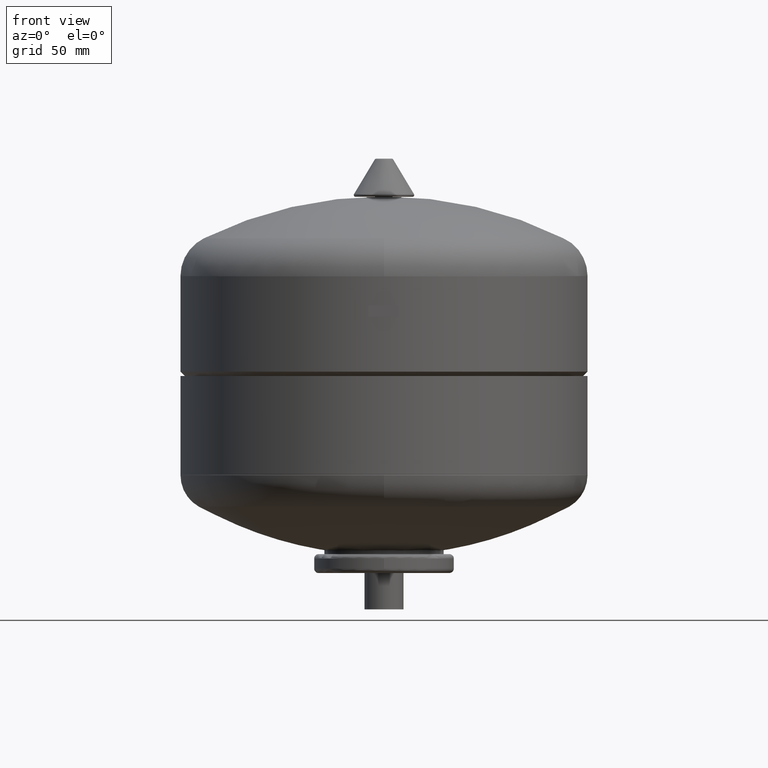
[diagram: clean part render]
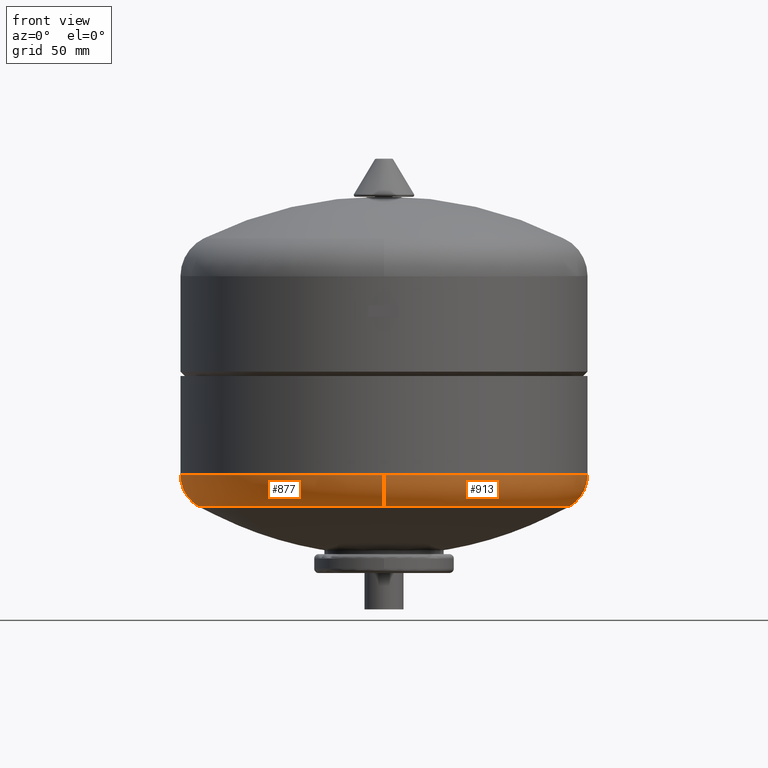
[diagram: same view with one multi-face feature highlighted, each face labeled with its STEP entity id]
A machine part, front view. The highlighted faces form ONE feature: a constant-radius fillet chain: 2 tangent blend faces with common blend radius 25 mm. The faces share edges in the B-rep.
Their STEP definitions:
[1] entity #877 (Torus):
#782=CARTESIAN_POINT('',(-139.999999999999970,1.180331E-016,92.357457576154616));
#783=VERTEX_POINT('',#782);
#807=CARTESIAN_POINT('',(-9.759320E-015,140.0,92.357457576154616));
#808=VERTEX_POINT('',#807);
#816=CARTESIAN_POINT('',(-1.190815E-016,1.180331E-016,92.357457576154587));
#817=DIRECTION('',(0.0,0.0,1.0));
#818=DIRECTION('',(-1.0,0.0,0.0));
#819=AXIS2_PLACEMENT_3D('',#816,#817,#818);
#820=CIRCLE('',#819,140.0);
#821=EDGE_CURVE('',#808,#783,#820,.T.);
#826=CARTESIAN_POINT('',(7.385169E-015,1.180331E-016,92.357457576154601));
#827=DIRECTION('',(1.853286E-016,-1.836970E-016,1.0));
#828=DIRECTION('',(0.0,-1.0,0.0));
#829=AXIS2_PLACEMENT_3D('',#826,#827,#828);
#830=TOROIDAL_SURFACE('',#829,115.000000000000010,25.0);
#831=CARTESIAN_POINT('',(7.385169E-015,-140.0,92.357457576154573));
#832=VERTEX_POINT('',#831);
#833=CARTESIAN_POINT('',(3.355614E-015,-127.339055793991430,70.614695513510171));
#834=VERTEX_POINT('',#833);
#835=CARTESIAN_POINT('',(7.385169E-015,-115.000000000000010,92.357457576154573));
#836=DIRECTION('',(1.0,0.0,0.0));
#837=DIRECTION('',(0.0,-1.0,0.0));
#838=AXIS2_PLACEMENT_3D('',#835,#836,#837);
#839=CIRCLE('',#838,25.0);
#840=EDGE_CURVE('',#832,#834,#839,.T.);
#841=ORIENTED_EDGE('',*,*,#840,.F.);
#842=CARTESIAN_POINT('',(-1.190815E-016,1.180331E-016,92.357457576154587));
#843=DIRECTION('',(0.0,0.0,1.0));
#844=DIRECTION('',(-1.0,0.0,0.0));
#845=AXIS2_PLACEMENT_3D('',#842,#843,#844);
#846=CIRCLE('',#845,140.0);
#847=EDGE_CURVE('',#783,#832,#846,.T.);
#848=ORIENTED_EDGE('',*,*,#847,.F.);
#849=ORIENTED_EDGE('',*,*,#821,.F.);
#850=CARTESIAN_POINT('',(-1.223841E-014,127.339055793991430,70.614695513510227));
#851=VERTEX_POINT('',#850);
#852=CARTESIAN_POINT('',(-6.697804E-015,115.000000000000010,92.357457576154630));
#853=DIRECTION('',(-1.0,0.0,0.0));
#854=DIRECTION('',(0.0,1.0,0.0));
#855=AXIS2_PLACEMENT_3D('',#852,#853,#854);
#856=CIRCLE('',#855,25.0);
#857=EDGE_CURVE('',#808,#851,#856,.T.);
#858=ORIENTED_EDGE('',*,*,#857,.T.);
#859=CARTESIAN_POINT('',(-127.339055793991450,4.112114E-015,70.614695513510213));
#860=VERTEX_POINT('',#859);
#861=CARTESIAN_POINT('',(-4.148636E-015,4.112114E-015,70.614695513510199));
#862=DIRECTION('',(0.0,0.0,1.0));
#863=DIRECTION('',(-1.0,0.0,0.0));
#864=AXIS2_PLACEMENT_3D('',#861,#862,#863);
#865=CIRCLE('',#864,127.339055793991430);
#866=EDGE_CURVE('',#851,#860,#865,.T.);
#867=ORIENTED_EDGE('',*,*,#866,.T.);
#868=CARTESIAN_POINT('',(-4.148636E-015,4.112114E-015,70.614695513510199));
#869=DIRECTION('',(0.0,0.0,1.0));
#870=DIRECTION('',(-1.0,0.0,0.0));
#871=AXIS2_PLACEMENT_3D('',#868,#869,#870);
#872=CIRCLE('',#871,127.339055793991430);
#873=EDGE_CURVE('',#860,#834,#872,.T.);
#874=ORIENTED_EDGE('',*,*,#873,.T.);
#875=EDGE_LOOP('',(#841,#848,#849,#858,#867,#874));
#876=FACE_OUTER_BOUND('',#875,.T.);
#877=ADVANCED_FACE('',(#876),#830,.T.);
[2] entity #913 (Torus):
#799=CARTESIAN_POINT('',(140.0,1.726252E-014,92.357457576154559));
#800=VERTEX_POINT('',#799);
#807=CARTESIAN_POINT('',(-9.759320E-015,140.0,92.357457576154616));
#808=VERTEX_POINT('',#807);
#809=CARTESIAN_POINT('',(-1.190815E-016,1.180331E-016,92.357457576154587));
#810=DIRECTION('',(0.0,0.0,1.0));
#811=DIRECTION('',(-1.0,0.0,0.0));
#812=AXIS2_PLACEMENT_3D('',#809,#810,#811);
#813=CIRCLE('',#812,140.0);
#814=EDGE_CURVE('',#800,#808,#813,.T.);
#831=CARTESIAN_POINT('',(7.385169E-015,-140.0,92.357457576154573));
#832=VERTEX_POINT('',#831);
#833=CARTESIAN_POINT('',(3.355614E-015,-127.339055793991430,70.614695513510171));
#834=VERTEX_POINT('',#833);
#835=CARTESIAN_POINT('',(7.385169E-015,-115.000000000000010,92.357457576154573));
#836=DIRECTION('',(1.0,0.0,0.0));
#837=DIRECTION('',(0.0,-1.0,0.0));
#838=AXIS2_PLACEMENT_3D('',#835,#836,#837);
#839=CIRCLE('',#838,25.0);
#840=EDGE_CURVE('',#832,#834,#839,.T.);
#850=CARTESIAN_POINT('',(-1.223841E-014,127.339055793991430,70.614695513510227));
#851=VERTEX_POINT('',#850);
#852=CARTESIAN_POINT('',(-6.697804E-015,115.000000000000010,92.357457576154630));
#853=DIRECTION('',(-1.0,0.0,0.0));
#854=DIRECTION('',(0.0,1.0,0.0));
#855=AXIS2_PLACEMENT_3D('',#852,#853,#854);
#856=CIRCLE('',#855,25.0);
#857=EDGE_CURVE('',#808,#851,#856,.T.);
#885=CARTESIAN_POINT('',(-4.148636E-015,4.112114E-015,70.614695513510199));
#886=DIRECTION('',(0.0,0.0,1.0));
#887=DIRECTION('',(-1.0,0.0,0.0));
#888=AXIS2_PLACEMENT_3D('',#885,#886,#887);
#889=CIRCLE('',#888,127.339055793991430);
#890=EDGE_CURVE('',#834,#851,#889,.T.);
#895=CARTESIAN_POINT('',(7.385169E-015,1.180331E-016,92.357457576154601));
#896=DIRECTION('',(1.853286E-016,-1.836970E-016,1.0));
#897=DIRECTION('',(0.0,-1.0,0.0));
#898=AXIS2_PLACEMENT_3D('',#895,#896,#897);
#899=TOROIDAL_SURFACE('',#898,115.000000000000010,25.0);
#900=ORIENTED_EDGE('',*,*,#840,.T.);
#901=ORIENTED_EDGE('',*,*,#890,.T.);
#902=ORIENTED_EDGE('',*,*,#857,.F.);
#903=ORIENTED_EDGE('',*,*,#814,.F.);
#904=CARTESIAN_POINT('',(-1.190815E-016,1.180331E-016,92.357457576154587));
#905=DIRECTION('',(0.0,0.0,1.0));
#906=DIRECTION('',(-1.0,0.0,0.0));
#907=AXIS2_PLACEMENT_3D('',#904,#905,#906);
#908=CIRCLE('',#907,140.0);
#909=EDGE_CURVE('',#832,#800,#908,.T.);
#910=ORIENTED_EDGE('',*,*,#909,.F.);
#911=EDGE_LOOP('',(#900,#901,#902,#903,#910));
#912=FACE_OUTER_BOUND('',#911,.T.);
#913=ADVANCED_FACE('',(#912),#899,.T.);